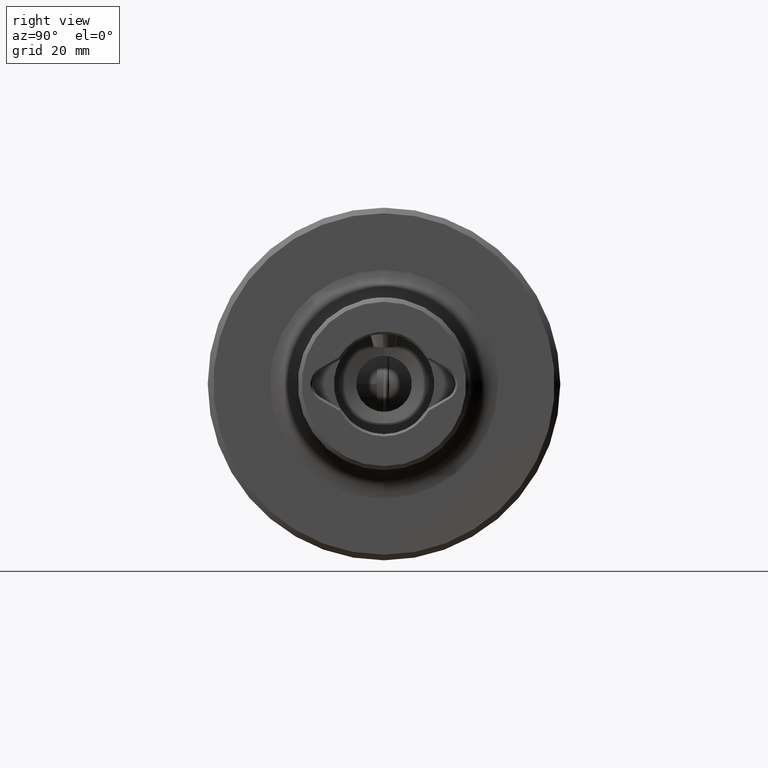
[diagram: clean part render]
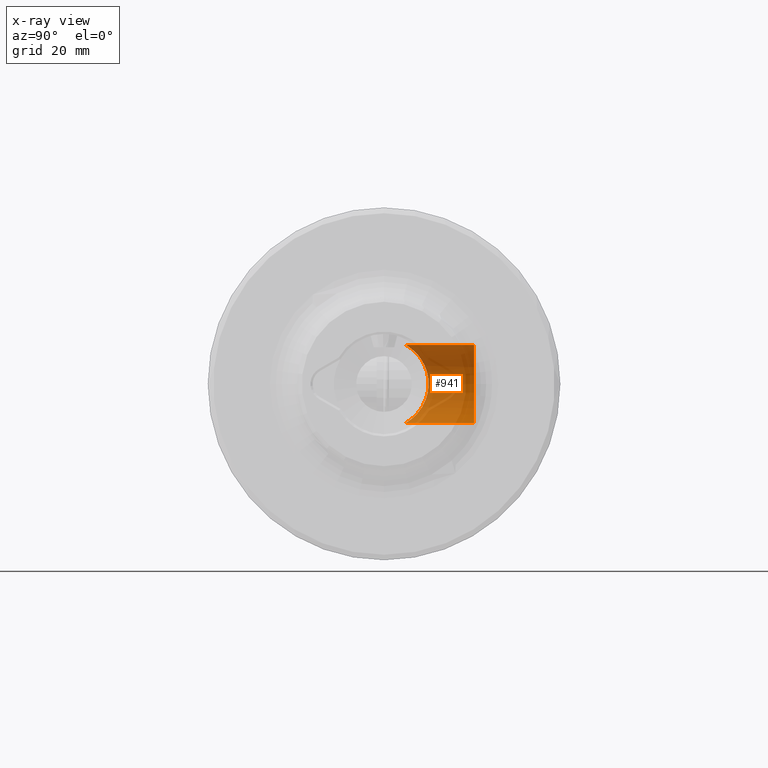
[diagram: x-ray — body ghosted, one internal face saturated and labeled with its STEP entity id]
A machine part, right view, then the same camera in x-ray: the body is ghosted and one INTERNAL B-rep face — a face not visible from any outside direction — is saturated and labeled: STEP entity #941.
In plain terms, the highlighted cylindrical surface (partial cylindrical patch) has radius 7 mm, axis along (0, 1, 0).
Its self-contained STEP definition (entity closure, byte-faithful):
#48 = AXIS2_PLACEMENT_3D ( 'NONE', #3083, #308, #690 ) ;
#62 = CARTESIAN_POINT ( 'NONE',  ( 28.45650230898545600, 4.630570762695073800, 6.525251823769613300 ) ) ;
#79 = CARTESIAN_POINT ( 'NONE',  ( 31.00000000000000000, -31.63500000000000500, -7.000000000000000000 ) ) ;
#181 = CIRCLE ( 'NONE', #48, 6.999999999999999100 ) ;
#235 = AXIS2_PLACEMENT_3D ( 'NONE', #1625, #2039, #3729 ) ;
#294 = DIRECTION ( 'NONE',  ( -0.0000000000000000000, 1.000000000000000000, -0.0000000000000000000 ) ) ;
#308 = DIRECTION ( 'NONE',  ( -1.432360404464315800E-016, 1.000000000000000000, -0.0000000000000000000 ) ) ;
#331 = VERTEX_POINT ( 'NONE', #1100 ) ;
#360 = CARTESIAN_POINT ( 'NONE',  ( 26.94886962702532100, 5.603198860898245000, -5.712612966352320000 ) ) ;
#374 = CYLINDRICAL_SURFACE ( 'NONE', #4787, 7.000000000000000000 ) ;
#397 = CARTESIAN_POINT ( 'NONE',  ( 24.69557899288614400, 7.398873424159355700, -3.051009069574219800 ) ) ;
#426 = CARTESIAN_POINT ( 'NONE',  ( 27.47539365466649700, 5.230696321363154800, 6.062862008288835400 ) ) ;
#441 = CARTESIAN_POINT ( 'NONE',  ( 30.01791474980993300, 3.988469878905466400, 6.935044079988333700 ) ) ;
#459 = CARTESIAN_POINT ( 'NONE',  ( 29.77802741755632400, 4.055457364967507400, 6.896534306439677100 ) ) ;
#690 = DIRECTION ( 'NONE',  ( -1.000000000000000000, 0.0000000000000000000, 0.0000000000000000000 ) ) ;
#696 = LINE ( 'NONE', #79, #4590 ) ;
#731 = CARTESIAN_POINT ( 'NONE',  ( 26.28152545996070800, 6.103671481951033200, -5.175140377973504800 ) ) ;
#744 = CARTESIAN_POINT ( 'NONE',  ( 29.78019303000145300, 4.054865476716297900, -6.896872378908236500 ) ) ;
#754 = EDGE_CURVE ( 'NONE', #4721, #331, #3218, .T. ) ;
#816 = CARTESIAN_POINT ( 'NONE',  ( 24.78435316828816700, 7.322888826826134500, 3.253468837334244000 ) ) ;
#828 = EDGE_CURVE ( 'NONE', #4721, #2949, #696, .T. ) ;
#863 = CARTESIAN_POINT ( 'NONE',  ( 31.00000000000000000, 3.872983346207416100, -7.000000000000000000 ) ) ;
#938 = VERTEX_POINT ( 'NONE', #2144 ) ;
#941 = ADVANCED_FACE ( 'NONE', ( #2582 ), #374, .F. ) ;
#1100 = CARTESIAN_POINT ( 'NONE',  ( 31.00000000000003200, 3.872983346207529800, 7.000000000000008000 ) ) ;
#1133 = CARTESIAN_POINT ( 'NONE',  ( 28.65990889001585600, 4.513167217921818500, -6.611679281401896100 ) ) ;
#1148 = CARTESIAN_POINT ( 'NONE',  ( 24.05466032900178400, 7.952056936992422100, -0.9989638608996337400 ) ) ;
#1164 = CARTESIAN_POINT ( 'NONE',  ( 24.20794932454041500, 7.818651992122297200, -1.710837691664603100 ) ) ;
#1181 = CARTESIAN_POINT ( 'NONE',  ( 25.02546966226504900, 7.119784853606720500, -3.654769069399923100 ) ) ;
#1203 = CARTESIAN_POINT ( 'NONE',  ( 24.50650095462512500, 7.560630500432977500, -2.624662021152113700 ) ) ;
#1219 = CARTESIAN_POINT ( 'NONE',  ( 28.66592305446394600, 4.517999929900987900, 6.603256513101735300 ) ) ;
#1272 = CARTESIAN_POINT ( 'NONE',  ( 30.74853928286106000, 3.872983346207416100, 7.000000000000000900 ) ) ;
#1339 = CARTESIAN_POINT ( 'NONE',  ( 31.00000000000000000, -31.63500000000000500, 0.0000000000000000000 ) ) ;
#1375 = DIRECTION ( 'NONE',  ( 0.0000000000000000000, 0.0000000000000000000, 1.000000000000000000 ) ) ;
#1561 = CARTESIAN_POINT ( 'NONE',  ( 24.20401643006870200, 7.822069272577860700, 1.695330024425939100 ) ) ;
#1597 = CARTESIAN_POINT ( 'NONE',  ( 30.50655199385512300, 3.896853369577715200, -6.986939365355585400 ) ) ;
#1625 = CARTESIAN_POINT ( 'NONE',  ( 31.00000000000000000, 16.15000000000000200, 0.0000000000000000000 ) ) ;
#1653 = CARTESIAN_POINT ( 'NONE',  ( 26.27584553510027700, 6.108056706286494600, 5.170014478738902900 ) ) ;
#1666 = CARTESIAN_POINT ( 'NONE',  ( 25.52746682110643700, 6.702835456357113300, 4.387530983107513500 ) ) ;
#1700 = CARTESIAN_POINT ( 'NONE',  ( 30.50233205902814900, 3.897572823664299700, 6.986533793702780500 ) ) ;
#1776 = ORIENTED_EDGE ( 'NONE', *, *, #3469, .F. ) ;
#1782 = ORIENTED_EDGE ( 'NONE', *, *, #828, .T. ) ;
#1794 = EDGE_CURVE ( 'NONE', #2549, #938, #181, .T. ) ;
#1798 = VECTOR ( 'NONE', #294, 1000.000000000000000 ) ;
#1959 = CARTESIAN_POINT ( 'NONE',  ( 23.99956464490029600, 8.000380935567909200, 0.2374143082818691000 ) ) ;
#1961 = CARTESIAN_POINT ( 'NONE',  ( 31.00000000000000000, 16.15000000000000200, -6.999999999999999100 ) ) ;
#1978 = CARTESIAN_POINT ( 'NONE',  ( 31.00000000000000000, 3.872983346207416100, -7.000000000000000000 ) ) ;
#2039 = DIRECTION ( 'NONE',  ( -1.432360404464315800E-016, 1.000000000000000000, -0.0000000000000000000 ) ) ;
#2097 = ORIENTED_EDGE ( 'NONE', *, *, #1794, .T. ) ;
#2144 = CARTESIAN_POINT ( 'NONE',  ( 31.00000000000000000, 16.15000000000000200, 6.999999999999999100 ) ) ;
#2253 = CIRCLE ( 'NONE', #235, 6.999999999999999100 ) ;
#2357 = ORIENTED_EDGE ( 'NONE', *, *, #4725, .T. ) ;
#2360 = CARTESIAN_POINT ( 'NONE',  ( 24.10246520295655900, 7.910458981541831100, 1.218010795547819000 ) ) ;
#2428 = CARTESIAN_POINT ( 'NONE',  ( 26.77525854670177100, 5.730294773337265100, -5.585463241233663100 ) ) ;
#2441 = CARTESIAN_POINT ( 'NONE',  ( 25.81104634559650200, 6.472103622738523600, 4.718209453474929500 ) ) ;
#2459 = CARTESIAN_POINT ( 'NONE',  ( 29.31751508531599300, 4.217140374111868300, 6.798871005101082300 ) ) ;
#2475 = CARTESIAN_POINT ( 'NONE',  ( 29.09602210038187000, 4.311558885268373100, 6.739864978118564700 ) ) ;
#2493 = CARTESIAN_POINT ( 'NONE',  ( 25.01472903792672400, 7.127611959860367100, 3.657263872402679400 ) ) ;
#2549 = VERTEX_POINT ( 'NONE', #4921 ) ;
#2582 = FACE_OUTER_BOUND ( 'NONE', #5105, .T. ) ;
#2744 = CARTESIAN_POINT ( 'NONE',  ( 24.27183329226401300, 7.763170223860406300, -1.946708591556200800 ) ) ;
#2796 = CARTESIAN_POINT ( 'NONE',  ( 29.09325734288529800, 4.295542750490962000, -6.751551159515620300 ) ) ;
#2810 = CARTESIAN_POINT ( 'NONE',  ( 25.81916881442155200, 6.465618769444684900, -4.726870835284260300 ) ) ;
#2846 = CARTESIAN_POINT ( 'NONE',  ( 31.00000000000003200, 3.872983346207529800, 7.000000000000008000 ) ) ;
#2949 = VERTEX_POINT ( 'NONE', #1961 ) ;
#3083 = CARTESIAN_POINT ( 'NONE',  ( 31.00000000000000000, 16.15000000000000200, 0.0000000000000000000 ) ) ;
#3087 = CARTESIAN_POINT ( 'NONE',  ( 31.00000000000000000, -31.63500000000000500, 7.000000000000000000 ) ) ;
#3145 = CARTESIAN_POINT ( 'NONE',  ( 27.85707477994499800, 4.977010234343019600, -6.269956170842670300 ) ) ;
#3165 = CARTESIAN_POINT ( 'NONE',  ( 30.01610137488169600, 3.988738115460893000, -6.934894096193117400 ) ) ;
#3203 = CARTESIAN_POINT ( 'NONE',  ( 25.53525059416266200, 6.696459006977318200, -4.397427045972286000 ) ) ;
#3218 = B_SPLINE_CURVE_WITH_KNOTS ( 'NONE', 3,
 ( #1978, #3978, #1597, #3165, #744, #2796, #1133, #3145, #4375, #360, #2428, #3618, #731, #2810, #3203, #3603, #1181, #4806, #397, #1203, #4016, #2744, #1164, #1148, #3945, #1959, #3962, #4750, #2360, #1561, #4768, #5177, #4085, #816, #2493, #1666, #2441, #1653, #3264, #3296, #4875, #426, #4466, #62, #1219, #2475, #2459, #459, #441, #1700, #1272, #2846 ),
 .UNSPECIFIED., .F., .F.,
 ( 4, 2, 2, 2, 2, 2, 2, 2, 2, 2, 2, 2, 2, 2, 2, 2, 2, 2, 2, 2, 2, 2, 2, 2, 2, 4 ),
 ( 0.02371444517806536500, 0.02445537776351820400, 0.02519631034897104600, 0.02667817551987673400, 0.02816004069078242200, 0.02890097327623526400, 0.02964190586168810600, 0.03112377103259378700, 0.03186470361804662900, 0.03260563620349947500, 0.03334656878895232000, 0.03408750137440516600, 0.03556936654531085700, 0.03631029913076370300, 0.03705123171621654800, 0.03779216430166939400, 0.03853309688712224000, 0.04001496205802793100, 0.04149682722893363600, 0.04223775981438647500, 0.04297869239983932000, 0.04446055757074501200, 0.04520149015619785700, 0.04594242274165070300, 0.04668335532710354800, 0.04742428791255639400 ),
 .UNSPECIFIED. ) ;
#3264 = CARTESIAN_POINT ( 'NONE',  ( 26.43810958514763200, 5.983197743966760700, 5.313678933897058700 ) ) ;
#3296 = CARTESIAN_POINT ( 'NONE',  ( 26.77208157100738000, 5.732635112101804400, 5.583075651238112300 ) ) ;
#3469 = EDGE_CURVE ( 'NONE', #331, #938, #4619, .T. ) ;
#3603 = CARTESIAN_POINT ( 'NONE',  ( 25.14813011631008900, 7.017061381128076600, -3.847834655708977100 ) ) ;
#3618 = CARTESIAN_POINT ( 'NONE',  ( 26.44179999664596200, 5.980386702605172500, -5.316827314838432600 ) ) ;
#3701 = DIRECTION ( 'NONE',  ( -0.0000000000000000000, 1.000000000000000000, -0.0000000000000000000 ) ) ;
#3729 = DIRECTION ( 'NONE',  ( -1.000000000000000000, 0.0000000000000000000, 0.0000000000000000000 ) ) ;
#3945 = CARTESIAN_POINT ( 'NONE',  ( 24.00090422832444800, 7.999208800510255700, -0.5123487462078849500 ) ) ;
#3962 = CARTESIAN_POINT ( 'NONE',  ( 24.01259493686569600, 7.988971967116977900, 0.4866045937506343100 ) ) ;
#3978 = CARTESIAN_POINT ( 'NONE',  ( 30.75341472122459400, 3.872983346207418800, -7.000000000000001800 ) ) ;
#4016 = CARTESIAN_POINT ( 'NONE',  ( 24.42139503826952000, 7.633913014964914400, -2.404133595501890800 ) ) ;
#4083 = ORIENTED_EDGE ( 'NONE', *, *, #754, .F. ) ;
#4085 = CARTESIAN_POINT ( 'NONE',  ( 24.50085358802246600, 7.565481669576096000, 2.610733071131192700 ) ) ;
#4190 = DIRECTION ( 'NONE',  ( -0.0000000000000000000, 1.000000000000000000, -0.0000000000000000000 ) ) ;
#4375 = CARTESIAN_POINT ( 'NONE',  ( 27.48251403914353500, 5.225842342489483100, -6.067100569784240200 ) ) ;
#4466 = CARTESIAN_POINT ( 'NONE',  ( 27.85006981514651200, 4.981293055620356300, 6.266666362729777600 ) ) ;
#4590 = VECTOR ( 'NONE', #3701, 1000.000000000000000 ) ;
#4619 = LINE ( 'NONE', #3087, #1798 ) ;
#4721 = VERTEX_POINT ( 'NONE', #863 ) ;
#4725 = EDGE_CURVE ( 'NONE', #2949, #2549, #2253, .T. ) ;
#4750 = CARTESIAN_POINT ( 'NONE',  ( 24.06404719125110600, 7.944009374381282700, 0.9763053732221505000 ) ) ;
#4768 = CARTESIAN_POINT ( 'NONE',  ( 24.26770867588234300, 7.766746700706389300, 1.932364216009899900 ) ) ;
#4787 = AXIS2_PLACEMENT_3D ( 'NONE', #1339, #4190, #1375 ) ;
#4806 = CARTESIAN_POINT ( 'NONE',  ( 24.79955884668914500, 7.310389463004228500, -3.256820414374543400 ) ) ;
#4875 = CARTESIAN_POINT ( 'NONE',  ( 26.94395453693563200, 5.606767190425721900, 5.709096391447093100 ) ) ;
#4921 = CARTESIAN_POINT ( 'NONE',  ( 24.00000000000000000, 16.15000000000000200, 0.0000000000000000000 ) ) ;
#5105 = EDGE_LOOP ( 'NONE', ( #4083, #1782, #2357, #2097, #1776 ) ) ;
#5177 = CARTESIAN_POINT ( 'NONE',  ( 24.41611980913625500, 7.638460984242302100, 2.389623310996372900 ) ) ;